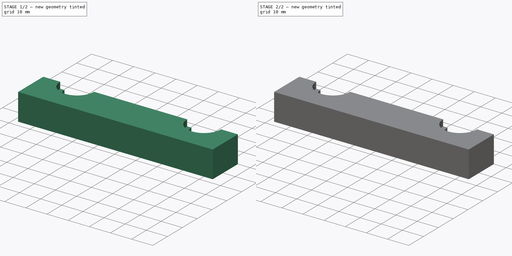
[diagram: build sequence overview — one tinted view per stage of 2, left to right]
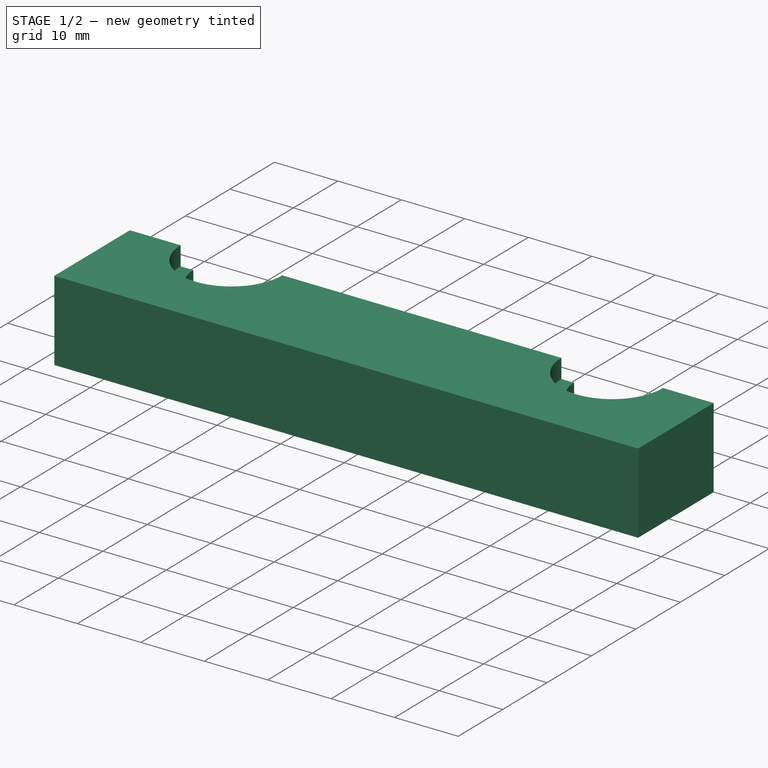
[diagram: stage 1 of 2 — iso view after this stage's code; geometry added in this stage tinted green]
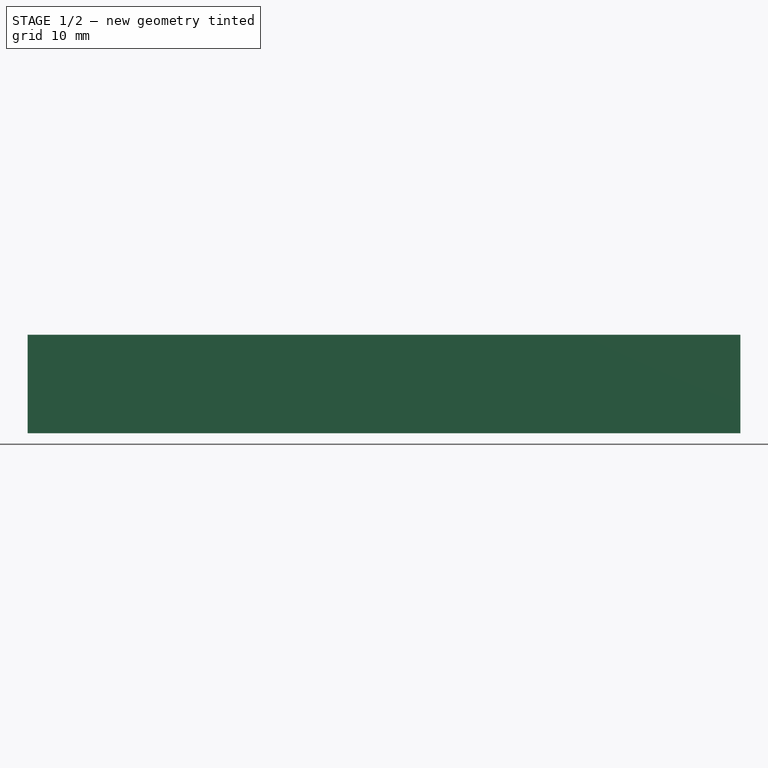
[diagram: stage 1 of 2 — front view after this stage's code; geometry added in this stage tinted green]
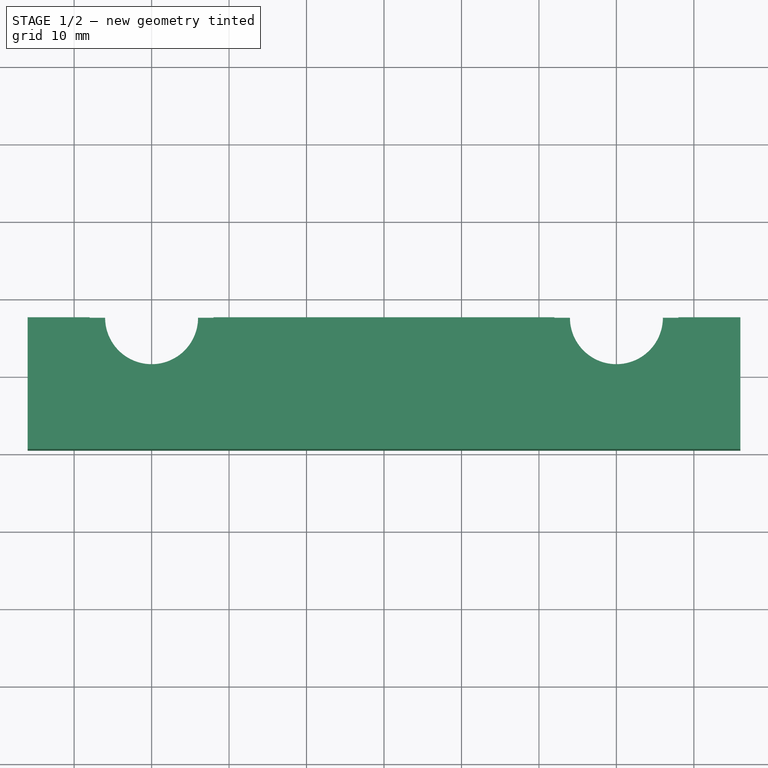
[diagram: stage 1 of 2 — top view after this stage's code; geometry added in this stage tinted green]
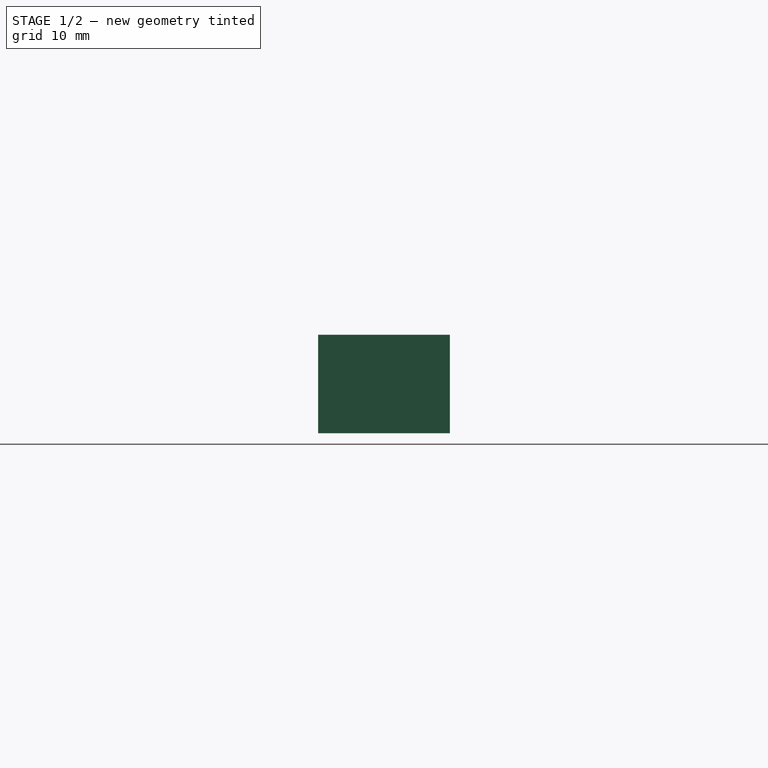
[diagram: stage 1 of 2 — right view after this stage's code; geometry added in this stage tinted green]
FCSTD DOCUMENT  (FreeCAD 0.16RUnknown)
Label: hotend-clamp
License: All rights reserved
LicenseURL: http://en.wikipedia.org/wiki/All_rights_reserved
objects: Sketcher::SketchObject×3, PartDesign::Pocket×2, PartDesign::Pad×1
note: 9 computed .brp shape members not serialized (recipe doc carries the construction recipe); baked Part::Feature solids carry a one-line shape summary decoded from their .brp

FEATURE [Sketcher::SketchObject] Sketch
  sketch-geometry (8):
    g0: LineSegment StartX=-46 StartY=7.5 StartZ=0 EndX=-46 EndY=-9.5 EndZ=0
    g1: LineSegment StartX=-46 StartY=-9.5 StartZ=0 EndX=46 EndY=-9.5 EndZ=0
    g2: LineSegment StartX=46 StartY=-9.5 StartZ=0 EndX=46 EndY=7.5 EndZ=0
    g3: LineSegment StartX=46 StartY=7.5 StartZ=0 EndX=36 EndY=7.5 EndZ=0
    g4: LineSegment StartX=24 StartY=7.5 StartZ=0 EndX=-24 EndY=7.5 EndZ=0
    g5: LineSegment StartX=-46 StartY=7.5 StartZ=0 EndX=-36 EndY=7.5 EndZ=0
    g6: ArcOfCircle CenterX=-30 CenterY=7.5 CenterZ=0 NormalX=0 NormalY=0 NormalZ=1 Radius=6 StartAngle=3.14159 EndAngle=6.28319
    g7: ArcOfCircle CenterX=30 CenterY=7.5 CenterZ=0 NormalX=0 NormalY=0 NormalZ=1 Radius=6 StartAngle=3.14159 EndAngle=6.28319
  constraints (26):
    c: Vertical(g0)
    c: Coincident(g0,g1)
    c: Horizontal(g1)
    c: Coincident(g1,g2)
    c: Vertical(g2)
    c: Coincident(g2,g3)
    c: Horizontal(g3)
    c: Horizontal(g4)
    c: Coincident(g5,g0)
    c: Horizontal(g5)
    c: Coincident(g6,g5)
    c: Coincident(g6,g4)
    c: Coincident(g7,g3)
    c: Coincident(g7,g4)
    c: DistanceY(g0,g0) = 17
    c: DistanceX(g1,g1) = 92
    c: Equal(g2,g0)
    c: Equal(g5,g3)
    c: Radius(g6) = 6
    c: Equal(g7,g6)
    c: DistanceY(g6,g4) = 0
    c: DistanceY(g4,g7) = 0
    c: DistanceY(g6,g5) = 0
    c: DistanceX(g5,g5) = 10
    c: DistanceY(g-1,g0) = 7.5
    c: DistanceX(g0,g-1) = 46
FEATURE [PartDesign::Pad] Pad
  Length = 12.7
  Length2 = 100
  Sketch = -> Sketch
  Type = 0
FEATURE [Sketcher::SketchObject] Sketch001
  Placement = pos=(0,0,12.7) rot=(0,0,1;0rad)
  Support = -> Pad [Face10]
  sketch-geometry (14):
    g0: ArcOfCircle CenterX=-30 CenterY=7.5 CenterZ=0 NormalX=0 NormalY=0 NormalZ=1 Radius=8 StartAngle=3.14159 EndAngle=6.28319
    g1: ArcOfCircle CenterX=30 CenterY=7.5 CenterZ=0 NormalX=0 NormalY=0 NormalZ=1 Radius=8 StartAngle=3.14159 EndAngle=6.28319
    g2: LineSegment [constr] StartX=-38 StartY=7.5 StartZ=0 EndX=-46 EndY=7.5 EndZ=0
    g3: LineSegment [constr] StartX=-46 StartY=7.5 StartZ=0 EndX=-46 EndY=-9.5 EndZ=0
    g4: LineSegment [constr] StartX=-46 StartY=-9.5 StartZ=0 EndX=46 EndY=-9.5 EndZ=0
    g5: LineSegment [constr] StartX=46 StartY=-9.5 StartZ=0 EndX=46 EndY=7.5 EndZ=0
    g6: LineSegment [constr] StartX=46 StartY=7.5 StartZ=0 EndX=38 EndY=7.5 EndZ=0
    g7: LineSegment [constr] StartX=22 StartY=7.5 StartZ=0 EndX=-22 EndY=7.5 EndZ=0
    g8: LineSegment StartX=-38 StartY=7.5 StartZ=0 EndX=-38 EndY=23.5 EndZ=0
    g9: LineSegment StartX=-38 StartY=23.5 StartZ=0 EndX=-22 EndY=23.5 EndZ=0
    g10: LineSegment StartX=-22 StartY=23.5 StartZ=0 EndX=-22 EndY=7.5 EndZ=0
    g11: LineSegment StartX=22 StartY=7.5 StartZ=0 EndX=22 EndY=23.5 EndZ=0
    g12: LineSegment StartX=22 StartY=23.5 StartZ=0 EndX=38 EndY=23.5 EndZ=0
    g13: LineSegment StartX=38 StartY=23.5 StartZ=0 EndX=38 EndY=7.5 EndZ=0
  constraints (40):
    c: Equal(g1,g0)
    c: Radius(g0) = 8
    c: Coincident(g0,g2)
    c: Coincident(g2,g3)
    c: Vertical(g3)
    c: Coincident(g3,g4)
    c: Horizontal(g4)
    c: Coincident(g4,g5)
    c: Vertical(g5)
    c: Coincident(g5,g6)
    c: Coincident(g6,g1)
    c: Horizontal(g6)
    c: Coincident(g1,g7)
    c: Horizontal(g7)
    c: Horizontal(g2)
    c: DistanceY(g3,g3) = 17
    c: Equal(g5,g3)
    c: DistanceX(g4,g4) = 92
    c: DistanceY(g-1,g2) = 7.5
    c: DistanceX(g2,g-1) = 46
    c: Equal(g2,g6)
    c: DistanceX(g2,g2) = 8
    c: Coincident(g0,g7)
    c: DistanceY(g0,g0) = 0
    c: DistanceY(g1,g1) = 0
    c: DistanceY(g1,g1) = 0
    c: Tangent(g0,g8) = 1.5708
    c: Coincident(g8,g9)
    c: Horizontal(g9)
    c: Coincident(g9,g10)
    c: Coincident(g10,g0)
    c: Vertical(g10)
    c: Tangent(g1,g11) = 1.5708
    c: Coincident(g11,g12)
    c: Horizontal(g12)
    c: Coincident(g12,g13)
    c: Vertical(g13)
    c: Equal(g8,g9)
    c: Equal(g11,g12)
    c: Coincident(g13,g1)
FEATURE [PartDesign::Pocket] Pocket
  Length = 3
  Sketch = -> Sketch001
  Type = 0
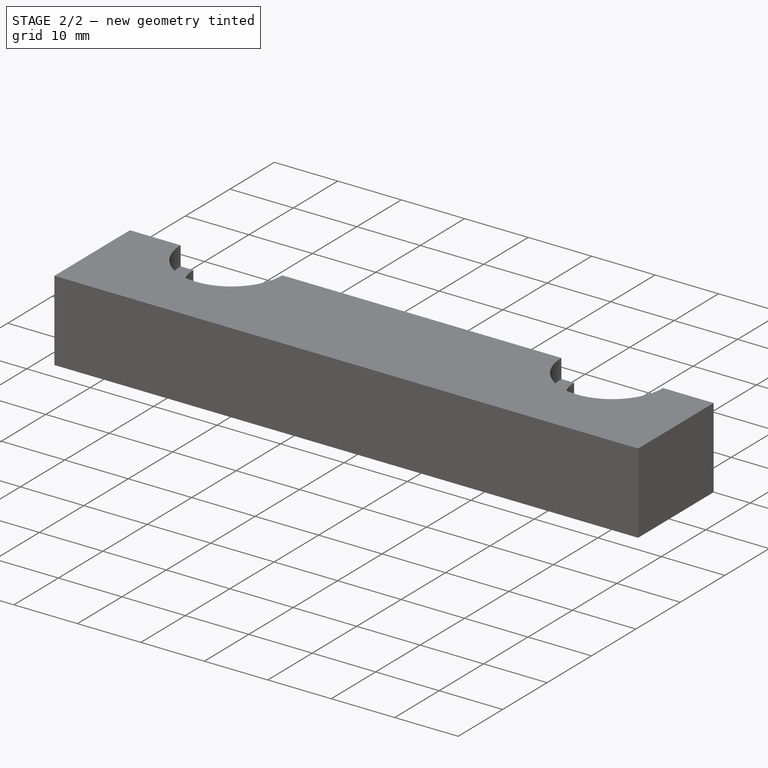
[diagram: stage 2 of 2 — iso view after this stage's code; geometry added in this stage tinted green]
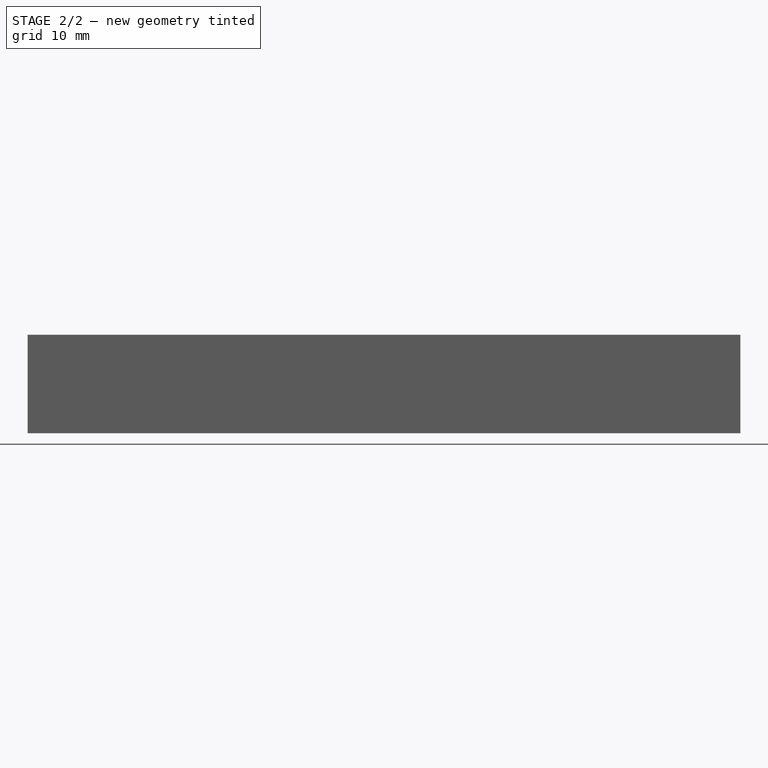
[diagram: stage 2 of 2 — front view after this stage's code; geometry added in this stage tinted green]
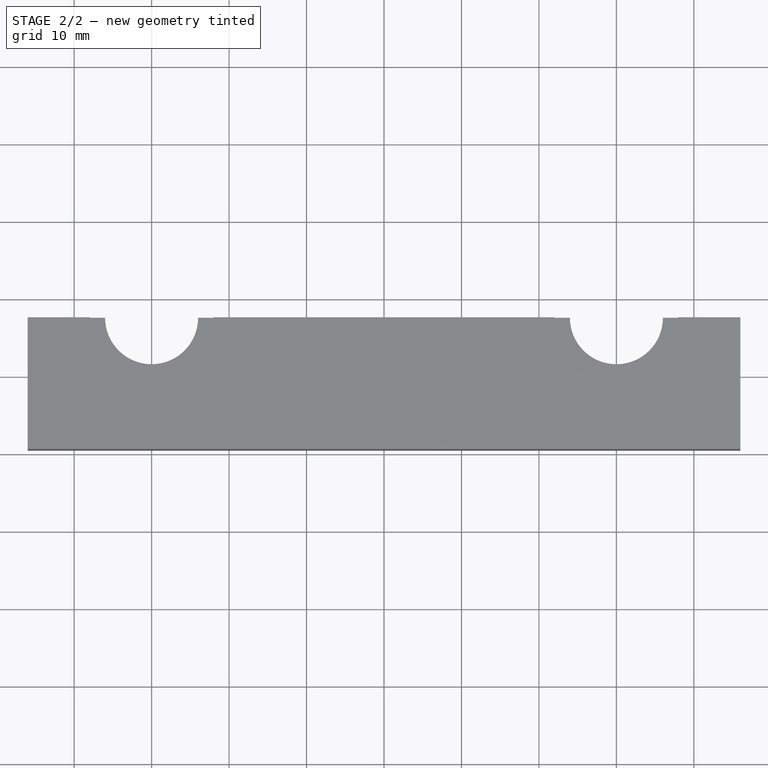
[diagram: stage 2 of 2 — top view after this stage's code; geometry added in this stage tinted green]
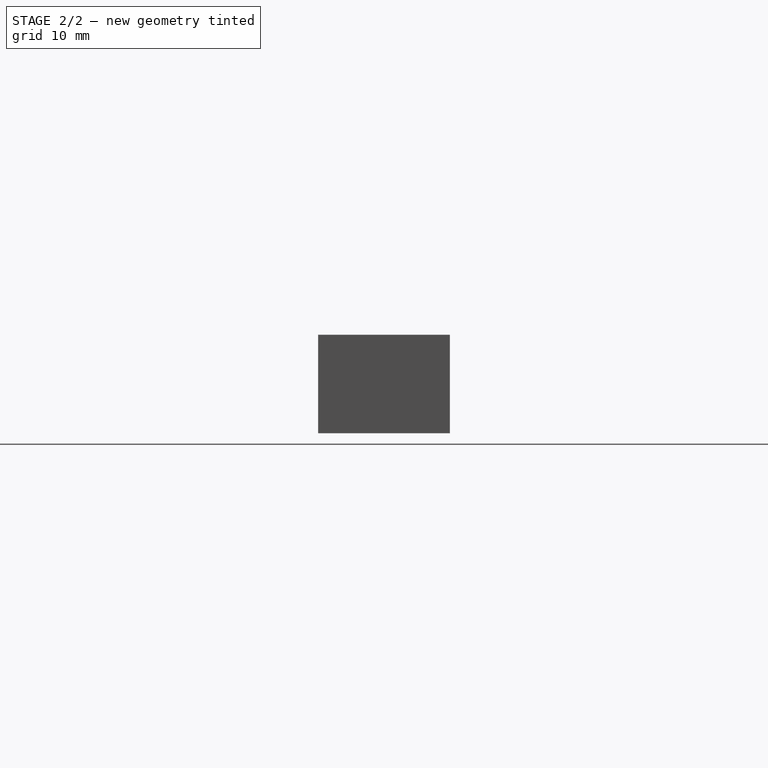
[diagram: stage 2 of 2 — right view after this stage's code; geometry added in this stage tinted green]
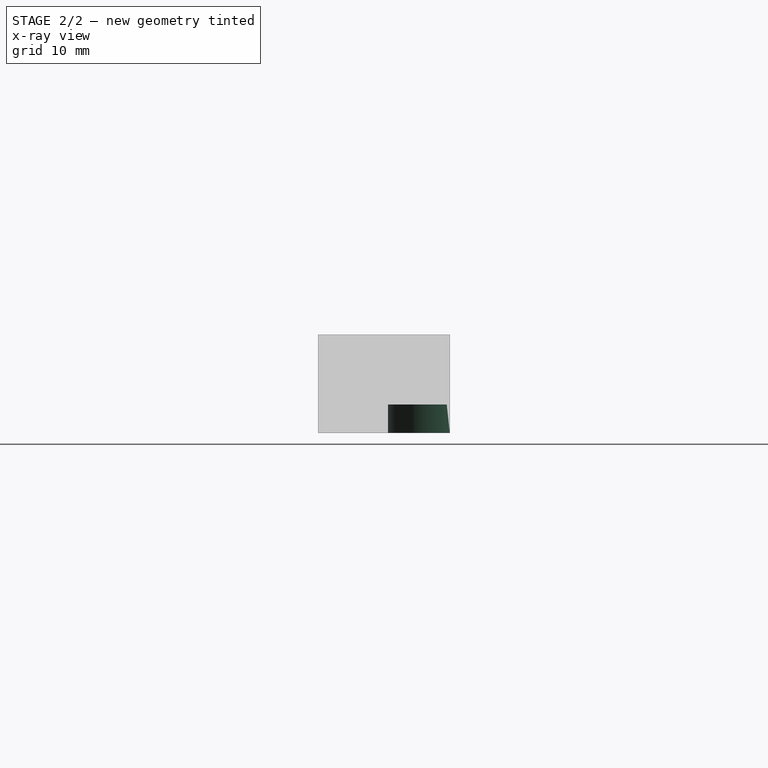
[diagram: stage 2 of 2 — x-ray composite at the right view; earlier geometry ghosted, this stage's added geometry solid]
FEATURE [Sketcher::SketchObject] Sketch002
  Placement = pos=(0,0,0) rot=(1,0,0;3.14159rad)
  Support = -> Pocket [Face2]
  sketch-geometry (14):
    g0: LineSegment [constr] StartX=-38 StartY=-7.5 StartZ=0 EndX=-46 EndY=-7.5 EndZ=0
    g1: LineSegment [constr] StartX=-46 StartY=-7.5 StartZ=0 EndX=-46 EndY=9.5 EndZ=0
    g2: LineSegment [constr] StartX=-46 StartY=9.5 StartZ=0 EndX=46 EndY=9.5 EndZ=0
    g3: LineSegment [constr] StartX=46 StartY=9.5 StartZ=0 EndX=46 EndY=-7.5 EndZ=0
    g4: LineSegment [constr] StartX=46 StartY=-7.5 StartZ=0 EndX=38 EndY=-7.5 EndZ=0
    g5: LineSegment [constr] StartX=22 StartY=-7.5 StartZ=0 EndX=-22 EndY=-7.5 EndZ=0
    g6: ArcOfCircle CenterX=-30 CenterY=-7.5 CenterZ=0 NormalX=0 NormalY=0 NormalZ=1 Radius=8 StartAngle=0 EndAngle=3.14159
    g7: ArcOfCircle CenterX=30 CenterY=-7.5 CenterZ=0 NormalX=0 NormalY=0 NormalZ=1 Radius=8 StartAngle=0 EndAngle=3.14159
    g8: LineSegment StartX=-38 StartY=-7.5 StartZ=0 EndX=-38 EndY=-23.5 EndZ=0
    g9: LineSegment StartX=-38 StartY=-23.5 StartZ=0 EndX=-22 EndY=-23.5 EndZ=0
    g10: LineSegment StartX=-22 StartY=-23.5 StartZ=0 EndX=-22 EndY=-7.5 EndZ=0
    g11: LineSegment StartX=22 StartY=-7.5 StartZ=0 EndX=22 EndY=-23.5 EndZ=0
    g12: LineSegment StartX=22 StartY=-23.5 StartZ=0 EndX=38 EndY=-23.5 EndZ=0
    g13: LineSegment StartX=38 StartY=-23.5 StartZ=0 EndX=38 EndY=-7.5 EndZ=0
  constraints (42):
    c: Horizontal(g0)
    c: Coincident(g0,g1)
    c: Vertical(g1)
    c: Coincident(g1,g2)
    c: Horizontal(g2)
    c: Coincident(g2,g3)
    c: Vertical(g3)
    c: Coincident(g3,g4)
    c: Horizontal(g5)
    c: Coincident(g6,g0)
    c: Coincident(g7,g5)
    c: Coincident(g4,g7)
    c: Coincident(g6,g5)
    c: Equal(g6,g7)
    c: Radius(g6) = 8
    c: DistanceY(g4,g7) = 0
    c: Horizontal(g4)
    c: Equal(g3,g1)
    c: DistanceY(g6,g5) = 0
    c: DistanceY(g6,g0) = 0
    c: DistanceY(g1,g1) = 17
    c: DistanceX(g2,g2) = 92
    c: DistanceX(g4,g4) = 8
    c: Equal(g0,g4)
    c: DistanceX(g1,g-1) = 46
    c: DistanceY(g-1,g1) = 9.5
    c: Coincident(g0,g8)
    c: Vertical(g8)
    c: Coincident(g8,g9)
    c: Horizontal(g9)
    c: Coincident(g9,g10)
    c: Coincident(g10,g5)
    c: Coincident(g5,g11)
    c: Vertical(g11)
    c: Coincident(g11,g12)
    c: Horizontal(g12)
    c: Coincident(g12,g13)
    c: Coincident(g13,g4)
    c: Vertical(g13)
    c: Vertical(g10)
    c: Equal(g8,g9)
    c: Equal(g11,g12)
FEATURE [PartDesign::Pocket] Pocket001
  Length = 3.7
  Sketch = -> Sketch002
  Type = 0
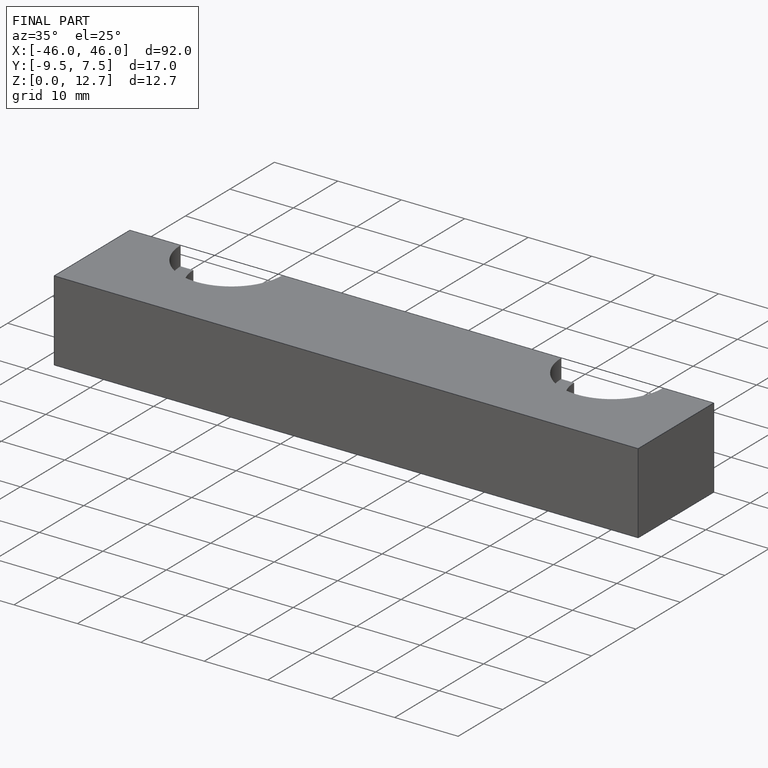
[diagram: finished part — iso view with bounding-box wireframe]
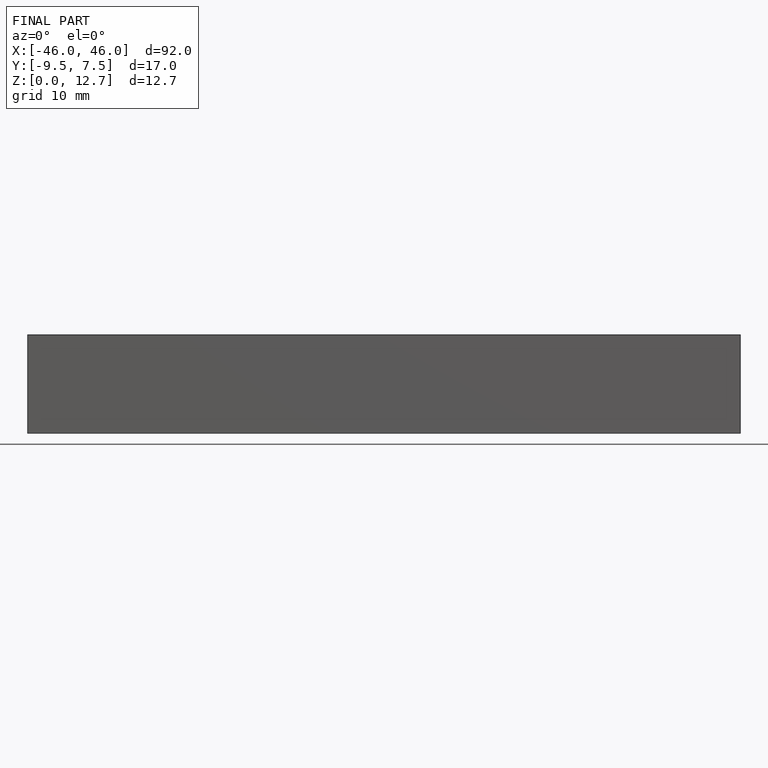
[diagram: finished part — front view with bounding-box wireframe]
